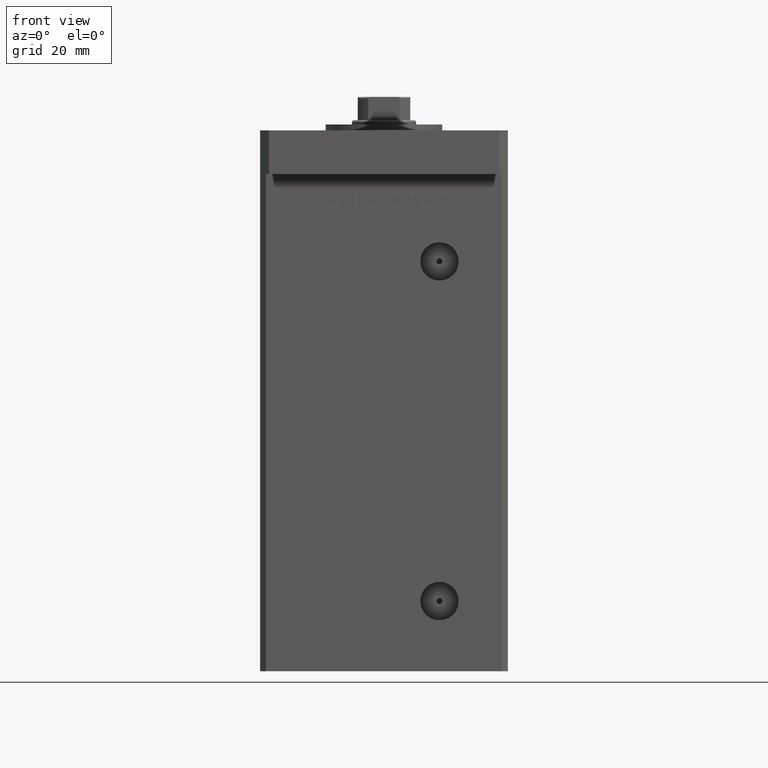
[diagram: clean part render]
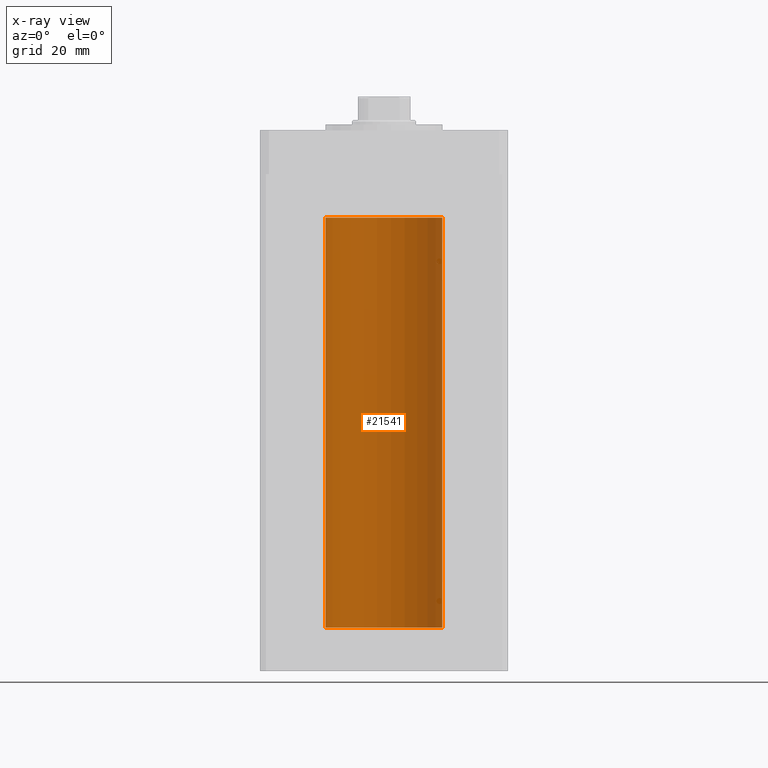
[diagram: x-ray — body ghosted, one internal face saturated and labeled with its STEP entity id]
A machine part, front view, then the same camera in x-ray: the body is ghosted and one INTERNAL B-rep face — a face not visible from any outside direction — is saturated and labeled: STEP entity #21541.
In plain terms, the highlighted cylindrical surface (partial cylindrical patch) has radius 20 mm, axis along (-0, -0, -1).
Its self-contained STEP definition (entity closure, byte-faithful):
#100 = VECTOR ( 'NONE', #40091, 1000.000000000000000 ) ;
#4375 = VECTOR ( 'NONE', #18937, 1000.000000000000000 ) ;
#4791 = CARTESIAN_POINT ( 'NONE',  ( 0.000000000000000000, 0.000000000000000000, 0.000000000000000000 ) ) ;
#5668 = VERTEX_POINT ( 'NONE', #51866 ) ;
#5695 = CARTESIAN_POINT ( 'NONE',  ( 20.00000000000000000, 2.449293598294706513E-15, 140.5000000000000000 ) ) ;
#12281 = DIRECTION ( 'NONE',  ( -0.000000000000000000, 0.000000000000000000, 1.000000000000000000 ) ) ;
#16074 = DIRECTION ( 'NONE',  ( 1.000000000000000000, 0.000000000000000000, 0.000000000000000000 ) ) ;
#16611 = EDGE_CURVE ( 'NONE', #22610, #32512, #41600, .T. ) ;
#17213 = ORIENTED_EDGE ( 'NONE', *, *, #50360, .F. ) ;
#17247 = DIRECTION ( 'NONE',  ( 1.000000000000000000, 0.000000000000000000, 0.000000000000000000 ) ) ;
#17742 = DIRECTION ( 'NONE',  ( -1.000000000000000000, 0.000000000000000000, 0.000000000000000000 ) ) ;
#18352 = EDGE_CURVE ( 'NONE', #32512, #19357, #19992, .T. ) ;
#18937 = DIRECTION ( 'NONE',  ( -0.000000000000000000, -0.000000000000000000, -1.000000000000000000 ) ) ;
#19357 = VERTEX_POINT ( 'NONE', #34623 ) ;
#19992 = LINE ( 'NONE', #47948, #100 ) ;
#21541 = ADVANCED_FACE ( 'NONE', ( #52658 ), #48585, .F. ) ;
#21801 = DIRECTION ( 'NONE',  ( -0.000000000000000000, -0.000000000000000000, -1.000000000000000000 ) ) ;
#22358 = AXIS2_PLACEMENT_3D ( 'NONE', #4791, #34078, #17247 ) ;
#22610 = VERTEX_POINT ( 'NONE', #27429 ) ;
#24242 = AXIS2_PLACEMENT_3D ( 'NONE', #41032, #12281, #16074 ) ;
#25704 = ORIENTED_EDGE ( 'NONE', *, *, #16611, .T. ) ;
#25865 = CARTESIAN_POINT ( 'NONE',  ( 0.000000000000000000, 0.000000000000000000, 140.5000000000000000 ) ) ;
#26294 = ORIENTED_EDGE ( 'NONE', *, *, #43462, .F. ) ;
#26435 = ORIENTED_EDGE ( 'NONE', *, *, #18352, .T. ) ;
#27429 = CARTESIAN_POINT ( 'NONE',  ( 20.00000000000000000, 2.449293598294706513E-15, 140.5000000000000000 ) ) ;
#32512 = VERTEX_POINT ( 'NONE', #33585 ) ;
#33585 = CARTESIAN_POINT ( 'NONE',  ( -20.00000000000000000, 0.000000000000000000, 140.5000000000000000 ) ) ;
#34078 = DIRECTION ( 'NONE',  ( -0.000000000000000000, 0.000000000000000000, 1.000000000000000000 ) ) ;
#34623 = CARTESIAN_POINT ( 'NONE',  ( -20.00000000000000000, 0.000000000000000000, 0.000000000000000000 ) ) ;
#36566 = EDGE_LOOP ( 'NONE', ( #17213, #25704, #26435, #26294 ) ) ;
#39166 = AXIS2_PLACEMENT_3D ( 'NONE', #25865, #21801, #17742 ) ;
#40091 = DIRECTION ( 'NONE',  ( -0.000000000000000000, -0.000000000000000000, -1.000000000000000000 ) ) ;
#41032 = CARTESIAN_POINT ( 'NONE',  ( 0.000000000000000000, 0.000000000000000000, 140.5000000000000000 ) ) ;
#41600 = CIRCLE ( 'NONE', #24242, 20.00000000000000000 ) ;
#43462 = EDGE_CURVE ( 'NONE', #5668, #19357, #49222, .T. ) ;
#47695 = LINE ( 'NONE', #5695, #4375 ) ;
#47948 = CARTESIAN_POINT ( 'NONE',  ( -20.00000000000000000, 0.000000000000000000, 140.5000000000000000 ) ) ;
#48585 = CYLINDRICAL_SURFACE ( 'NONE', #39166, 20.00000000000000000 ) ;
#49222 = CIRCLE ( 'NONE', #22358, 20.00000000000000000 ) ;
#50360 = EDGE_CURVE ( 'NONE', #22610, #5668, #47695, .T. ) ;
#51866 = CARTESIAN_POINT ( 'NONE',  ( 20.00000000000000000, 2.449293598294706513E-15, 0.000000000000000000 ) ) ;
#52658 = FACE_OUTER_BOUND ( 'NONE', #36566, .T. ) ;